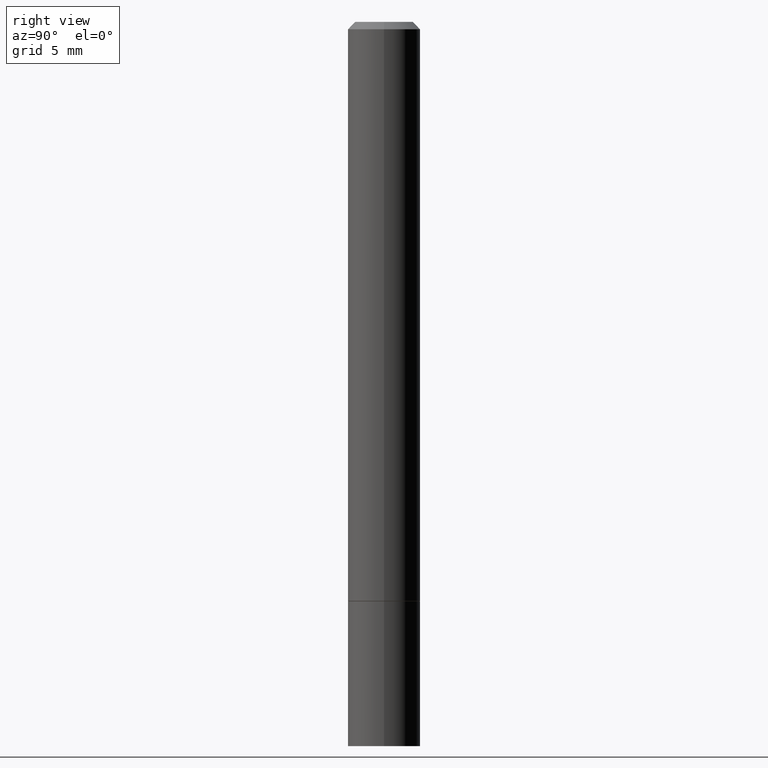
[diagram: clean part render]
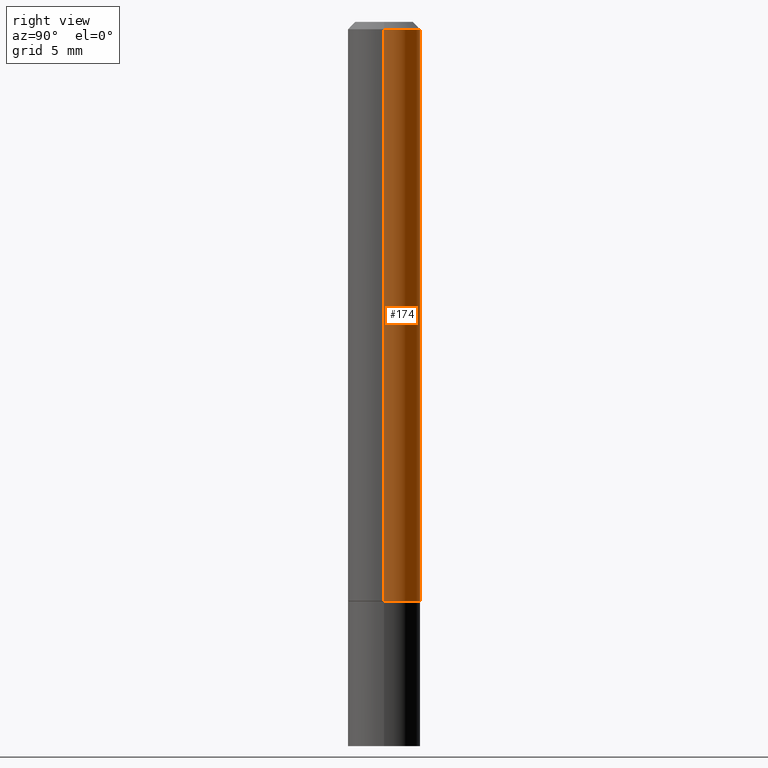
[diagram: same view with one face highlighted and labeled with its STEP entity id]
A machine part, right view. The second image highlights one B-rep face of the part: STEP entity #174.
In plain terms, the highlighted cylindrical surface (edge-blend (fillet) strip) has radius 2.5006 mm, axis along (-0, 0, 1).
Its self-contained STEP definition (entity closure, byte-faithful):
#2 = ORIENTED_EDGE ( 'NONE', *, *, #132, .T. ) ;
#12 = DIRECTION ( 'NONE',  ( -2.445468806185136877E-29, 3.491481338843145188E-15, 1.000000000000000000 ) ) ;
#13 = AXIS2_PLACEMENT_3D ( 'NONE', #38, #16, #230 ) ;
#16 = DIRECTION ( 'NONE',  ( -2.445468806185136597E-29, 3.491481338843145583E-15, 1.000000000000000000 ) ) ;
#17 = LINE ( 'NONE', #150, #271 ) ;
#18 = ORIENTED_EDGE ( 'NONE', *, *, #110, .F. ) ;
#38 = CARTESIAN_POINT ( 'NONE',  ( 0.000000000000000000, 0.000000000000000000, 0.000000000000000000 ) ) ;
#39 = AXIS2_PLACEMENT_3D ( 'NONE', #237, #319, #354 ) ;
#42 = DIRECTION ( 'NONE',  ( -2.445468806185136597E-29, 3.491481338843145583E-15, 1.000000000000000000 ) ) ;
#43 = LINE ( 'NONE', #210, #126 ) ;
#67 = CARTESIAN_POINT ( 'NONE',  ( 3.848678807174168313E-29, -5.494893331071342359E-15, -1.573800000000000088 ) ) ;
#72 = CYLINDRICAL_SURFACE ( 'NONE', #13, 0.09844999999999988483 ) ;
#101 = CARTESIAN_POINT ( 'NONE',  ( 0.09844999999999978768, -7.452456546574688288E-16, -0.02000000000000002123 ) ) ;
#110 = EDGE_CURVE ( 'NONE', #180, #277, #270, .T. ) ;
#119 = DIRECTION ( 'NONE',  ( 1.000000000000000000, -6.982962677686265922E-15, 0.000000000000000000 ) ) ;
#121 = FACE_OUTER_BOUND ( 'NONE', #344, .T. ) ;
#124 = DIRECTION ( 'NONE',  ( -2.445468806185136877E-29, 3.491481338843145188E-15, 1.000000000000000000 ) ) ;
#126 = VECTOR ( 'NONE', #124, 39.37007874015748143 ) ;
#132 = EDGE_CURVE ( 'NONE', #146, #318, #335, .T. ) ;
#146 = VERTEX_POINT ( 'NONE', #153 ) ;
#150 = CARTESIAN_POINT ( 'NONE',  ( 0.09844999999999988483, -6.874726756182121656E-16, 4.800596035771093609E-30 ) ) ;
#153 = CARTESIAN_POINT ( 'NONE',  ( 0.09844999999999999585, -6.182366006689555708E-15, -1.573800000000000088 ) ) ;
#160 = AXIS2_PLACEMENT_3D ( 'NONE', #67, #42, #119 ) ;
#170 = CARTESIAN_POINT ( 'NONE',  ( -0.09844999999999999585, -2.082832155568281168E-15, -1.573800000000000088 ) ) ;
#174 = ADVANCED_FACE ( 'NONE', ( #121 ), #72, .T. ) ;
#180 = VERTEX_POINT ( 'NONE', #101 ) ;
#182 = CARTESIAN_POINT ( 'NONE',  ( -0.09844999999999978768, 6.176430488413484730E-16, -0.02000000000000002123 ) ) ;
#192 = ORIENTED_EDGE ( 'NONE', *, *, #235, .F. ) ;
#210 = CARTESIAN_POINT ( 'NONE',  ( -0.09844999999999988483, 6.995293233558178146E-16, -4.842691596355949137E-30 ) ) ;
#230 = DIRECTION ( 'NONE',  ( 1.000000000000000000, -6.982962677686266711E-15, 4.876176775795936353E-29 ) ) ;
#235 = EDGE_CURVE ( 'NONE', #146, #180, #17, .T. ) ;
#237 = CARTESIAN_POINT ( 'NONE',  ( 4.890937612370278413E-31, -6.982962677686297772E-17, -0.02000000000000002123 ) ) ;
#245 = EDGE_CURVE ( 'NONE', #318, #277, #43, .T. ) ;
#270 = CIRCLE ( 'NONE', #39, 0.09844999999999978768 ) ;
#271 = VECTOR ( 'NONE', #12, 39.37007874015748143 ) ;
#277 = VERTEX_POINT ( 'NONE', #182 ) ;
#313 = ORIENTED_EDGE ( 'NONE', *, *, #245, .T. ) ;
#318 = VERTEX_POINT ( 'NONE', #170 ) ;
#319 = DIRECTION ( 'NONE',  ( -2.445468806185136597E-29, 3.491481338843145583E-15, 1.000000000000000000 ) ) ;
#335 = CIRCLE ( 'NONE', #160, 0.09844999999999999585 ) ;
#344 = EDGE_LOOP ( 'NONE', ( #2, #313, #18, #192 ) ) ;
#354 = DIRECTION ( 'NONE',  ( 1.000000000000000000, -6.982962677686266711E-15, 0.000000000000000000 ) ) ;